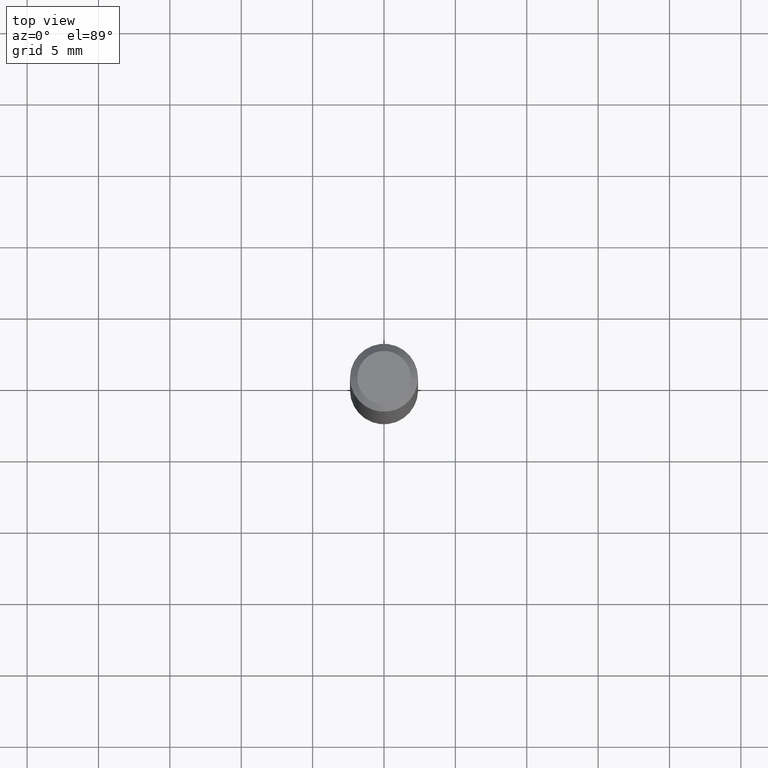
[diagram: clean part render]
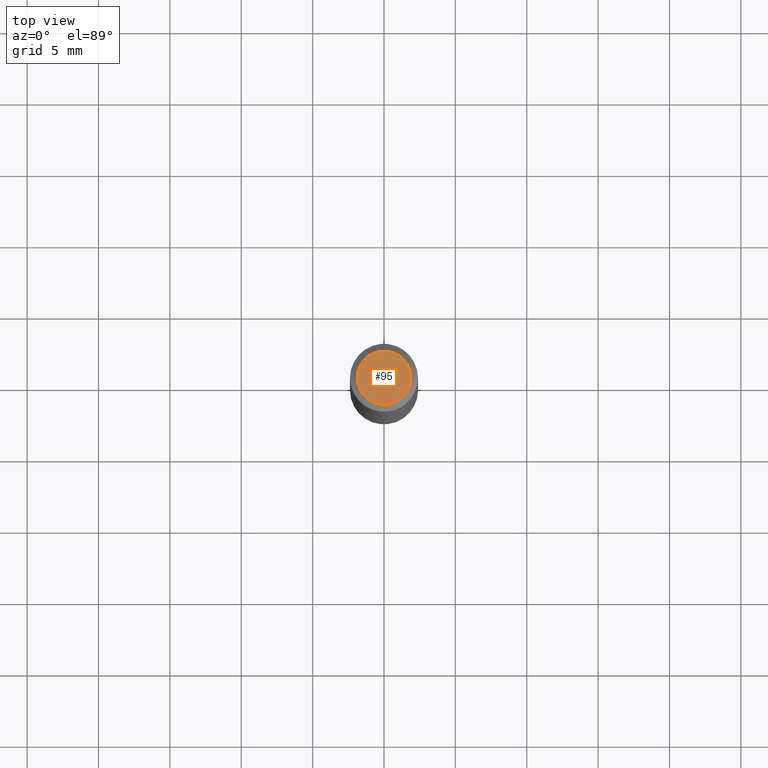
[diagram: same view with one face highlighted and labeled with its STEP entity id]
A machine part, top view. The second image highlights one B-rep face of the part: STEP entity #95.
In plain terms, the highlighted planar face has unit normal (0, -0, -1).
Its self-contained STEP definition (entity closure, byte-faithful):
#21 = DIRECTION ( 'NONE',  ( 2.438088387897960049E-29, -3.491481338843145188E-15, -1.000000000000000000 ) ) ;
#34 = ORIENTED_EDGE ( 'NONE', *, *, #359, .T. ) ;
#52 = CARTESIAN_POINT ( 'NONE',  ( 0.000000000000000000, 0.000000000000000000, 0.000000000000000000 ) ) ;
#57 = CIRCLE ( 'NONE', #267, 0.07374999999999982958 ) ;
#67 = EDGE_LOOP ( 'NONE', ( #34, #329 ) ) ;
#68 = CARTESIAN_POINT ( 'NONE',  ( 5.149934974793609077E-16, 0.07374999999999982958, -2.574967487396813906E-16 ) ) ;
#95 = ADVANCED_FACE ( 'NONE', ( #339 ), #334, .F. ) ;
#96 = CARTESIAN_POINT ( 'NONE',  ( -0.07374999999999982958, 5.499083108677921624E-16, -3.723527850031185562E-30 ) ) ;
#125 = DIRECTION ( 'NONE',  ( -1.000000000000000000, 6.982962677686265922E-15, -4.876176775795935793E-29 ) ) ;
#145 = VERTEX_POINT ( 'NONE', #251 ) ;
#158 = DIRECTION ( 'NONE',  ( 1.000000000000000000, -6.982962677686266711E-15, 4.876176775795935793E-29 ) ) ;
#176 = DIRECTION ( 'NONE',  ( 1.000000000000000000, -6.982962677686266711E-15, 4.876176775795935793E-29 ) ) ;
#213 = DIRECTION ( 'NONE',  ( -2.445468806185136597E-29, 3.491481338843145583E-15, 1.000000000000000000 ) ) ;
#231 = CARTESIAN_POINT ( 'NONE',  ( 0.000000000000000000, 0.000000000000000000, 0.000000000000000000 ) ) ;
#251 = CARTESIAN_POINT ( 'NONE',  ( 0.07374999999999982958, -6.094815207017960212E-16, 3.931526600461596647E-30 ) ) ;
#267 = AXIS2_PLACEMENT_3D ( 'NONE', #52, #213, #158 ) ;
#295 = EDGE_CURVE ( 'NONE', #145, #360, #57, .T. ) ;
#312 = AXIS2_PLACEMENT_3D ( 'NONE', #231, #354, #176 ) ;
#323 = AXIS2_PLACEMENT_3D ( 'NONE', #68, #21, #125 ) ;
#329 = ORIENTED_EDGE ( 'NONE', *, *, #295, .T. ) ;
#334 = PLANE ( 'NONE',  #323 ) ;
#339 = FACE_OUTER_BOUND ( 'NONE', #67, .T. ) ;
#344 = CIRCLE ( 'NONE', #312, 0.07374999999999982958 ) ;
#354 = DIRECTION ( 'NONE',  ( -2.445468806185136597E-29, 3.491481338843145583E-15, 1.000000000000000000 ) ) ;
#359 = EDGE_CURVE ( 'NONE', #360, #145, #344, .T. ) ;
#360 = VERTEX_POINT ( 'NONE', #96 ) ;